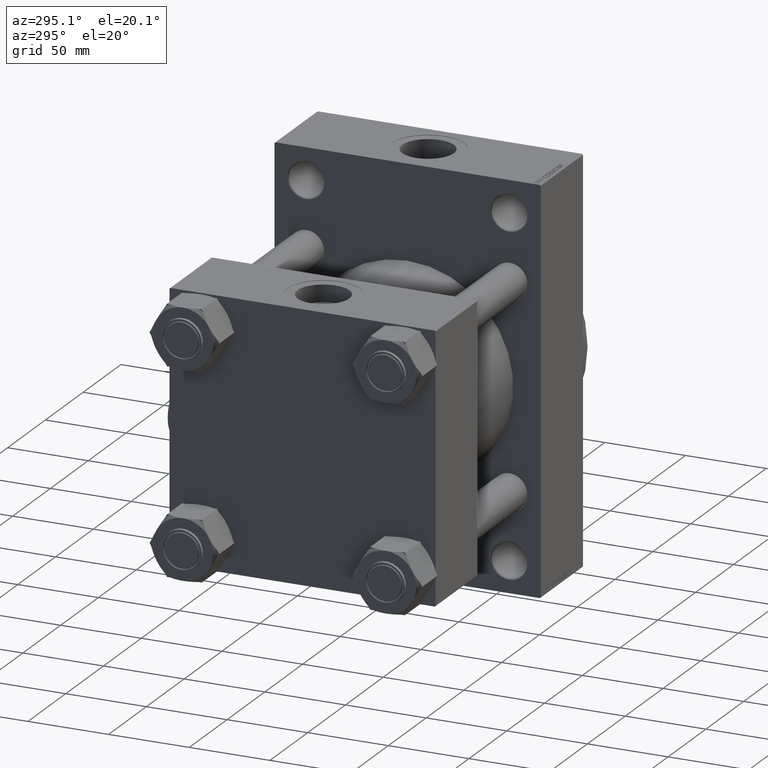
[diagram: clean part render]
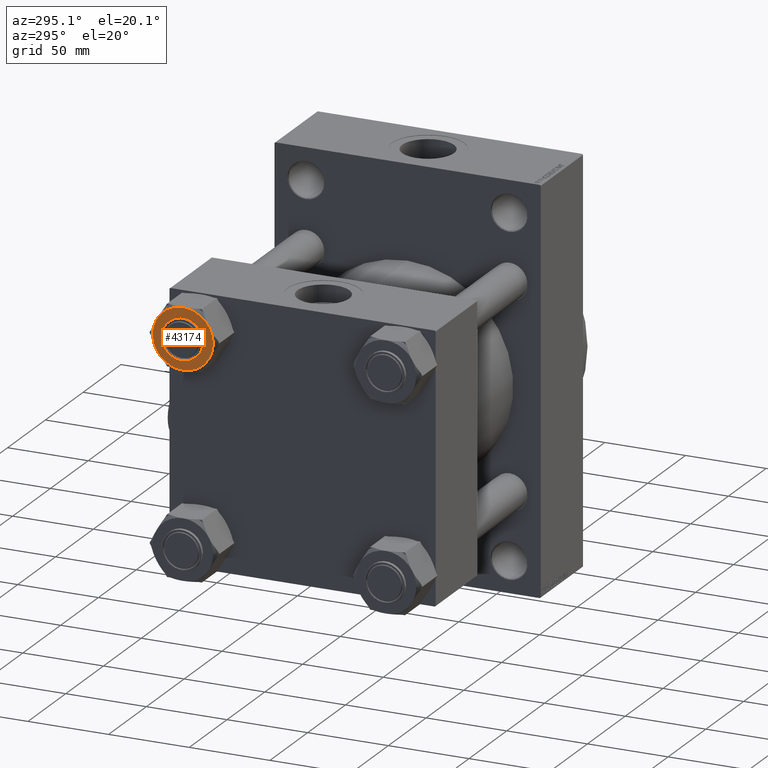
[diagram: same view with one face highlighted and labeled with its STEP entity id]
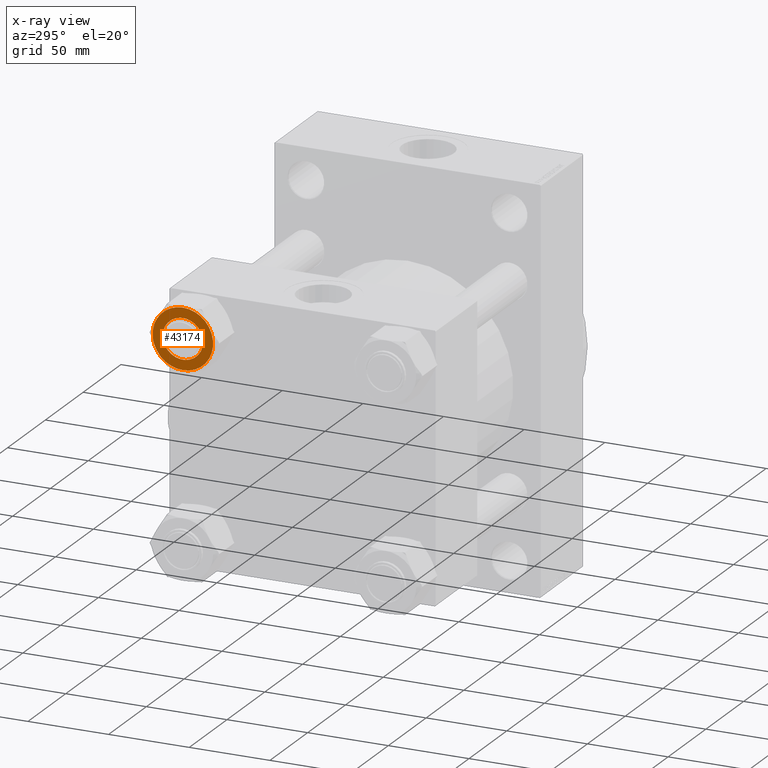
[diagram: x-ray of the same camera — body ghosted, the highlighted face saturated]
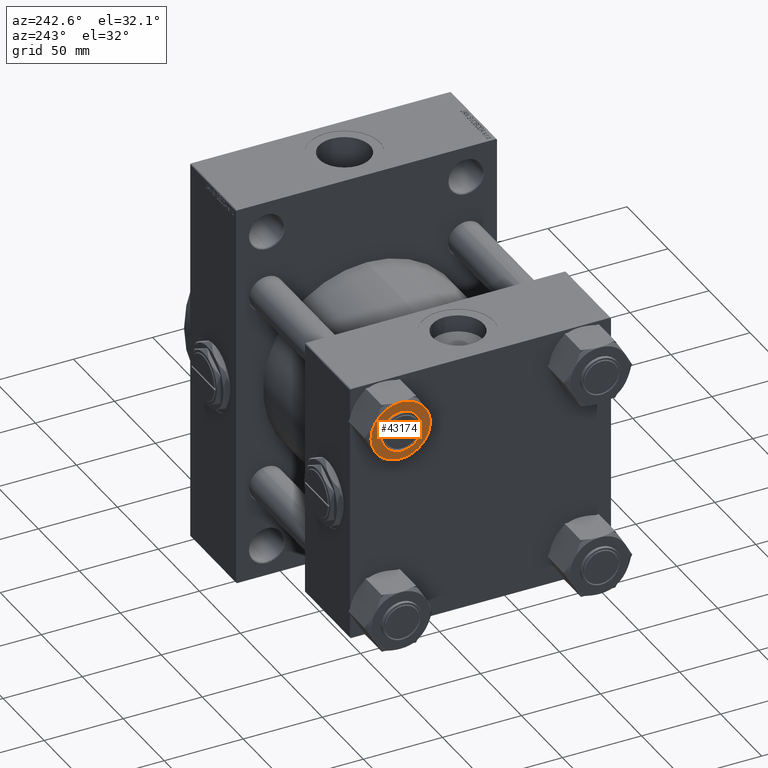
[diagram: same view with one face highlighted and labeled with its STEP entity id]
A machine part, auxiliary view. The second image highlights one B-rep face of the part: STEP entity #43174.
The next image is the same camera in x-ray: the body ghosted, the highlighted face saturated — about 0% of this face is hidden behind the body in this view.
A second angle (auxiliary view) of the same face is appended — the face is thin or edge-on in the first view.
In plain terms, the highlighted planar face has unit normal (1, 0, 0).
Its self-contained STEP definition (entity closure, byte-faithful):
#269 = DIRECTION ( 'NONE',  ( 0.000000000000000000, 0.000000000000000000, -1.000000000000000000 ) ) ;
#444 = VERTEX_POINT ( 'NONE', #20337 ) ;
#600 = CIRCLE ( 'NONE', #13544, 18.72346922981957462 ) ;
#922 = VERTEX_POINT ( 'NONE', #29554 ) ;
#1353 = AXIS2_PLACEMENT_3D ( 'NONE', #16255, #269, #34999 ) ;
#1888 = CIRCLE ( 'NONE', #48817, 18.72346922981957462 ) ;
#1959 = ORIENTED_EDGE ( 'NONE', *, *, #30276, .F. ) ;
#4497 = CARTESIAN_POINT ( 'NONE',  ( 0.000000000000000000, 0.000000000000000000, 0.000000000000000000 ) ) ;
#5483 = DIRECTION ( 'NONE',  ( -1.000000000000000000, 0.000000000000000000, 0.000000000000000000 ) ) ;
#6006 = VERTEX_POINT ( 'NONE', #48033 ) ;
#6531 = DIRECTION ( 'NONE',  ( 0.000000000000000000, -0.000000000000000000, -1.000000000000000000 ) ) ;
#6785 = DIRECTION ( 'NONE',  ( -1.000000000000000000, 0.000000000000000000, 0.000000000000000000 ) ) ;
#7152 = EDGE_CURVE ( 'NONE', #41256, #32989, #46122, .T. ) ;
#8428 = VERTEX_POINT ( 'NONE', #49544 ) ;
#9192 = CIRCLE ( 'NONE', #10784, 18.72346922981957462 ) ;
#9812 = CARTESIAN_POINT ( 'NONE',  ( 0.000000000000000000, 0.000000000000000000, 0.000000000000000000 ) ) ;
#10098 = CIRCLE ( 'NONE', #36016, 18.72346922981957462 ) ;
#10338 = ORIENTED_EDGE ( 'NONE', *, *, #25824, .F. ) ;
#10784 = AXIS2_PLACEMENT_3D ( 'NONE', #4497, #35931, #5483 ) ;
#10911 = DIRECTION ( 'NONE',  ( -1.000000000000000000, 0.000000000000000000, 0.000000000000000000 ) ) ;
#12791 = EDGE_LOOP ( 'NONE', ( #26076, #23289, #26936, #10338, #45830, #1959, #17969 ) ) ;
#13000 = EDGE_CURVE ( 'NONE', #8428, #13531, #30708, .T. ) ;
#13161 = CARTESIAN_POINT ( 'NONE',  ( -16.21500000000001762, -9.361734614909776653, 0.000000000000000000 ) ) ;
#13531 = VERTEX_POINT ( 'NONE', #27756 ) ;
#13544 = AXIS2_PLACEMENT_3D ( 'NONE', #9812, #21714, #21463 ) ;
#16078 = CARTESIAN_POINT ( 'NONE',  ( 0.000000000000000000, 0.000000000000000000, 0.000000000000000000 ) ) ;
#16255 = CARTESIAN_POINT ( 'NONE',  ( 0.000000000000000000, 0.000000000000000000, 0.000000000000000000 ) ) ;
#16604 = AXIS2_PLACEMENT_3D ( 'NONE', #41258, #6531, #21994 ) ;
#16760 = ORIENTED_EDGE ( 'NONE', *, *, #28162, .F. ) ;
#17969 = ORIENTED_EDGE ( 'NONE', *, *, #35220, .T. ) ;
#18626 = CARTESIAN_POINT ( 'NONE',  ( 12.50000000000000000, 1.530808498934191521E-15, 0.000000000000000000 ) ) ;
#19702 = EDGE_LOOP ( 'NONE', ( #33039, #16760 ) ) ;
#19766 = AXIS2_PLACEMENT_3D ( 'NONE', #23531, #23016, #42785 ) ;
#20337 = CARTESIAN_POINT ( 'NONE',  ( 18.72346922981957462, 0.000000000000000000, 0.000000000000000000 ) ) ;
#20985 = CARTESIAN_POINT ( 'NONE',  ( 16.21500000000001052, -9.361734614909789087, 0.000000000000000000 ) ) ;
#20991 = CARTESIAN_POINT ( 'NONE',  ( 0.000000000000000000, 0.000000000000000000, 0.000000000000000000 ) ) ;
#21463 = DIRECTION ( 'NONE',  ( 1.000000000000000000, 0.000000000000000000, 0.000000000000000000 ) ) ;
#21714 = DIRECTION ( 'NONE',  ( 0.000000000000000000, 0.000000000000000000, 1.000000000000000000 ) ) ;
#21994 = DIRECTION ( 'NONE',  ( -1.000000000000000000, 0.000000000000000000, 0.000000000000000000 ) ) ;
#22600 = DIRECTION ( 'NONE',  ( 0.000000000000000000, 0.000000000000000000, 1.000000000000000000 ) ) ;
#22647 = AXIS2_PLACEMENT_3D ( 'NONE', #16078, #36581, #37076 ) ;
#23016 = DIRECTION ( 'NONE',  ( 0.000000000000000000, -0.000000000000000000, -1.000000000000000000 ) ) ;
#23289 = ORIENTED_EDGE ( 'NONE', *, *, #38241, .F. ) ;
#23531 = CARTESIAN_POINT ( 'NONE',  ( 0.000000000000000000, 0.000000000000000000, 0.000000000000000000 ) ) ;
#24804 = DIRECTION ( 'NONE',  ( -1.000000000000000000, 0.000000000000000000, 0.000000000000000000 ) ) ;
#25034 = AXIS2_PLACEMENT_3D ( 'NONE', #33413, #48863, #6785 ) ;
#25824 = EDGE_CURVE ( 'NONE', #36626, #6006, #1888, .T. ) ;
#26076 = ORIENTED_EDGE ( 'NONE', *, *, #13000, .F. ) ;
#26936 = ORIENTED_EDGE ( 'NONE', *, *, #32503, .F. ) ;
#27399 = FACE_BOUND ( 'NONE', #19702, .T. ) ;
#27756 = CARTESIAN_POINT ( 'NONE',  ( -3.004629197474320824E-15, 18.72346922981957462, 0.000000000000000000 ) ) ;
#28162 = EDGE_CURVE ( 'NONE', #32989, #41256, #29391, .T. ) ;
#29391 = CIRCLE ( 'NONE', #48017, 12.50000000000000000 ) ;
#29458 = EDGE_CURVE ( 'NONE', #444, #36626, #9192, .T. ) ;
#29506 = CIRCLE ( 'NONE', #16604, 18.72346922981957462 ) ;
#29554 = CARTESIAN_POINT ( 'NONE',  ( 16.21500000000001052, 9.361734614909781982, 0.000000000000000000 ) ) ;
#30276 = EDGE_CURVE ( 'NONE', #922, #444, #39980, .T. ) ;
#30708 = CIRCLE ( 'NONE', #25034, 18.72346922981957462 ) ;
#31450 = FACE_OUTER_BOUND ( 'NONE', #12791, .T. ) ;
#32503 = EDGE_CURVE ( 'NONE', #6006, #42649, #10098, .T. ) ;
#32989 = VERTEX_POINT ( 'NONE', #18626 ) ;
#33039 = ORIENTED_EDGE ( 'NONE', *, *, #7152, .F. ) ;
#33413 = CARTESIAN_POINT ( 'NONE',  ( 0.000000000000000000, 0.000000000000000000, 0.000000000000000000 ) ) ;
#34014 = DIRECTION ( 'NONE',  ( 1.000000000000000000, 0.000000000000000000, 0.000000000000000000 ) ) ;
#34257 = CARTESIAN_POINT ( 'NONE',  ( 0.000000000000000000, 0.000000000000000000, 0.000000000000000000 ) ) ;
#34999 = DIRECTION ( 'NONE',  ( -1.000000000000000000, 0.000000000000000000, -0.000000000000000000 ) ) ;
#35220 = EDGE_CURVE ( 'NONE', #922, #13531, #600, .T. ) ;
#35762 = PLANE ( 'NONE',  #1353 ) ;
#35931 = DIRECTION ( 'NONE',  ( 0.000000000000000000, -0.000000000000000000, -1.000000000000000000 ) ) ;
#36016 = AXIS2_PLACEMENT_3D ( 'NONE', #20991, #36201, #24804 ) ;
#36201 = DIRECTION ( 'NONE',  ( 0.000000000000000000, -0.000000000000000000, -1.000000000000000000 ) ) ;
#36581 = DIRECTION ( 'NONE',  ( 0.000000000000000000, 0.000000000000000000, 1.000000000000000000 ) ) ;
#36626 = VERTEX_POINT ( 'NONE', #20985 ) ;
#37076 = DIRECTION ( 'NONE',  ( 1.000000000000000000, 0.000000000000000000, 0.000000000000000000 ) ) ;
#38241 = EDGE_CURVE ( 'NONE', #42649, #8428, #29506, .T. ) ;
#39980 = CIRCLE ( 'NONE', #19766, 18.72346922981957462 ) ;
#41256 = VERTEX_POINT ( 'NONE', #46755 ) ;
#41258 = CARTESIAN_POINT ( 'NONE',  ( 0.000000000000000000, 0.000000000000000000, 0.000000000000000000 ) ) ;
#42334 = CARTESIAN_POINT ( 'NONE',  ( 0.000000000000000000, 0.000000000000000000, 0.000000000000000000 ) ) ;
#42649 = VERTEX_POINT ( 'NONE', #13161 ) ;
#42785 = DIRECTION ( 'NONE',  ( -1.000000000000000000, 0.000000000000000000, 0.000000000000000000 ) ) ;
#43174 = ADVANCED_FACE ( 'NONE', ( #27399, #31450 ), #35762, .F. ) ;
#45638 = DIRECTION ( 'NONE',  ( 0.000000000000000000, -0.000000000000000000, -1.000000000000000000 ) ) ;
#45830 = ORIENTED_EDGE ( 'NONE', *, *, #29458, .F. ) ;
#46122 = CIRCLE ( 'NONE', #22647, 12.50000000000000000 ) ;
#46755 = CARTESIAN_POINT ( 'NONE',  ( -12.50000000000000000, 0.000000000000000000, 0.000000000000000000 ) ) ;
#48017 = AXIS2_PLACEMENT_3D ( 'NONE', #34257, #22600, #34014 ) ;
#48033 = CARTESIAN_POINT ( 'NONE',  ( 3.004629197474320035E-15, -18.72346922981957462, 0.000000000000000000 ) ) ;
#48817 = AXIS2_PLACEMENT_3D ( 'NONE', #42334, #45638, #10911 ) ;
#48863 = DIRECTION ( 'NONE',  ( 0.000000000000000000, -0.000000000000000000, -1.000000000000000000 ) ) ;
#49544 = CARTESIAN_POINT ( 'NONE',  ( -16.21500000000001052, 9.361734614909790864, 0.000000000000000000 ) ) ;